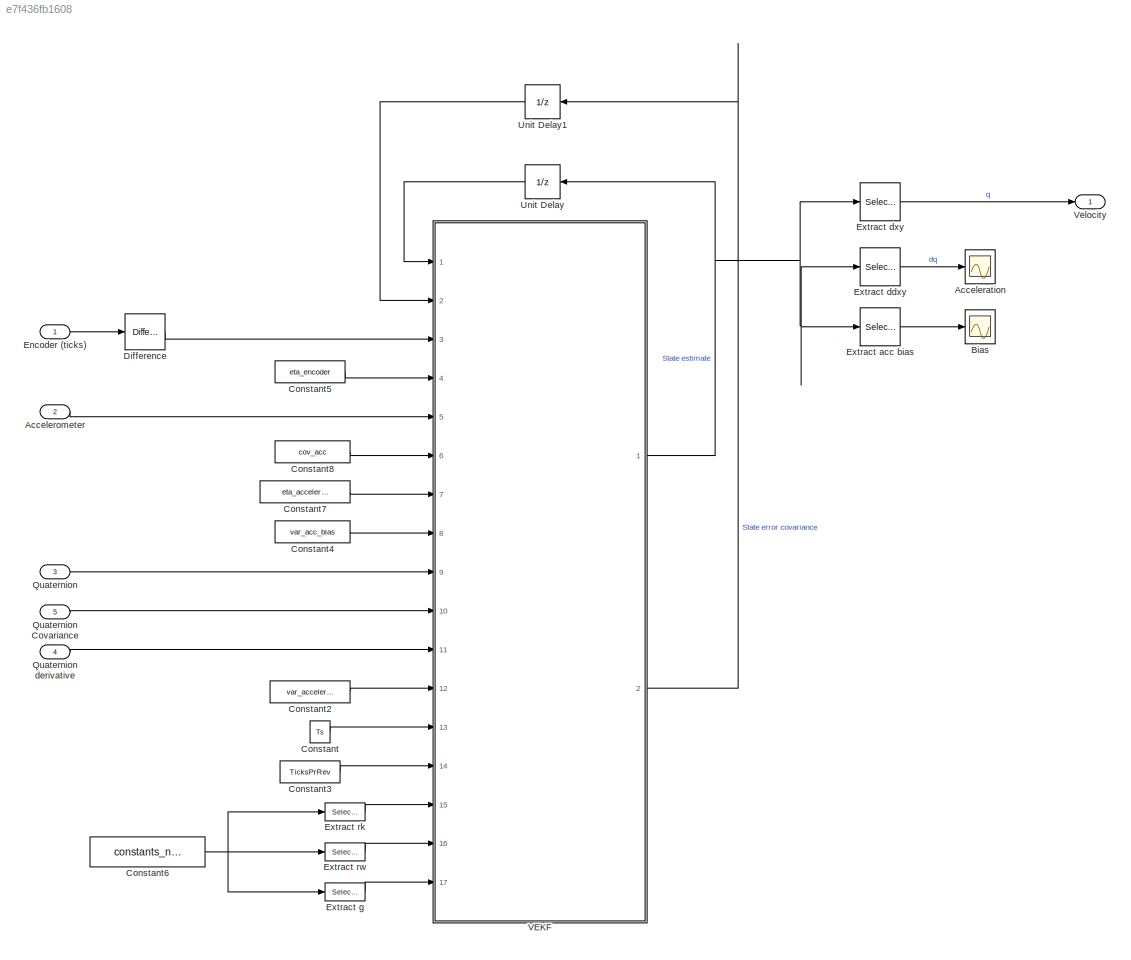
MODEL slx_e7f436fb1608
KIND model
CONFIG AbsTol = auto
CONFIG EnableMultiTasking = off
CONFIG FixedStep = auto
CONFIG InitFcn = Parameters_Estimators\nParameters_Simulation
CONFIG MaxStep = auto
CONFIG MinStep = auto
CONFIG PreLoadFcn = modelDir = fileparts(get_param(bdroot, 'FileName'));\naddpath(fullfile(modelDir,'../../Parameters'));\naddpath(fullfile(modelDir,'../../Estimators/VEKF'));\n\nParameters_Estimators\nParameters_Simulation
CONFIG RelTol = 1e-3
CONFIG SampleTimeConstraint = Unconstrained
CONFIG Solver = VariableStepAuto
CONFIG SolverName = VariableStepAuto
CONFIG StartTime = 0.0
CONFIG StopTime = 10.0
BLOCK [Scope] Acceleration
  Floating = off
  NumInputPorts = 1
  Ports = [1]
  ScopeSpecificationString = Simulink.scopes.TimeScopeBlockCfg('CurrentConfiguration', extmgr.ConfigurationSet(extmgr.Configuration('Core','General UI',true),extmgr.Configuration('Core','Source UI',true),extmgr.Configuration('Sources','WiredSimulink',true,'DataLoggingVariableName','ScopeData1'),extmgr.Configuration('Visuals','Time Domain',true,'SerializedDisplays',{struct('MinYLimReal','-0.00006','MaxYLimReal','0.00017','YLab...<+1507ch>
BLOCK [Inport] Accelerometer
  IconDisplay = Port number
  Port = 2
BLOCK [Scope] Bias
  Floating = off
  NumInputPorts = 1
  Ports = [1]
  ScopeSpecificationString = Simulink.scopes.TimeScopeBlockCfg('CurrentConfiguration', extmgr.ConfigurationSet(extmgr.Configuration('Core','General UI',true),extmgr.Configuration('Core','Source UI',true),extmgr.Configuration('Sources','WiredSimulink',true,'DataLoggingVariableName','ScopeData1'),extmgr.Configuration('Visuals','Time Domain',true,'SerializedDisplays',{struct('MinYLimReal','-0.00006','MaxYLimReal','0.00017','YLab...<+1507ch>
BLOCK [Constant] Constant
  Value = Ts
BLOCK [Constant] Constant2
  Value = var_acceleration
BLOCK [Constant] Constant3
  Value = TicksPrRev
BLOCK [Constant] Constant4
  Value = var_acc_bias
BLOCK [Constant] Constant5
  Value = eta_encoder
BLOCK [Constant] Constant6
  Value = constants_nominal
BLOCK [Constant] Constant7
  Value = eta_accelerometer
BLOCK [Constant] Constant8
  Value = cov_acc
BLOCK [Reference] Difference   REF=simulink/Discrete/Difference
  Ports = [1, 1]
  SourceBlock = simulink/Discrete/Difference
  SourceProductBaseCode = SL
  SourceProductName = Simulink
  SourceType = Difference
BLOCK [Inport] Encoder (ticks)
  IconDisplay = Port number
  PortDimensions = 3
BLOCK [Selector] Extract acc bias
  IndexOptions = Index vector (dialog)
  Indices = [5 6 7]
  InputPortWidth = 7
  OutputSizes = 1
  Ports = [1, 1]
BLOCK [Selector] Extract ddxy
  IndexOptions = Index vector (dialog)
  Indices = [3 4]
  InputPortWidth = 7
  OutputSizes = 1
  Ports = [1, 1]
BLOCK [Selector] Extract dxy
  IndexOptions = Index vector (dialog)
  Indices = [1 2]
  InputPortWidth = 7
  OutputSizes = 1
  Ports = [1, 1]
BLOCK [Selector] Extract g
  IndexOptions = Index vector (dialog)
  Indices = [13]
  InputPortWidth = 13
  OutputSizes = 1
  Ports = [1, 1]
BLOCK [Selector] Extract rk
  IndexOptions = Index vector (dialog)
  Indices = [3]
  InputPortWidth = 13
  OutputSizes = 1
  Ports = [1, 1]
BLOCK [Selector] Extract rw
  IndexOptions = Index vector (dialog)
  Indices = [9]
  InputPortWidth = 13
  OutputSizes = 1
  Ports = [1, 1]
BLOCK [Inport] Quaternion
  IconDisplay = Port number
  Port = 3
BLOCK [Inport] Quaternion Covariance
  IconDisplay = Port number
  Port = 5
BLOCK [Inport] Quaternion derivative
  IconDisplay = Port number
  Port = 4
BLOCK [UnitDelay] Unit Delay
  InitialCondition = zeros(7,1);
  InputProcessing = Elements as channels (sample based)
  SampleTime = Ts
BLOCK [UnitDelay] Unit Delay1
  InitialCondition = diag(VelocityEstimator_P_init_diagonal)
  InputProcessing = Elements as channels (sample based)
  SampleTime = Ts
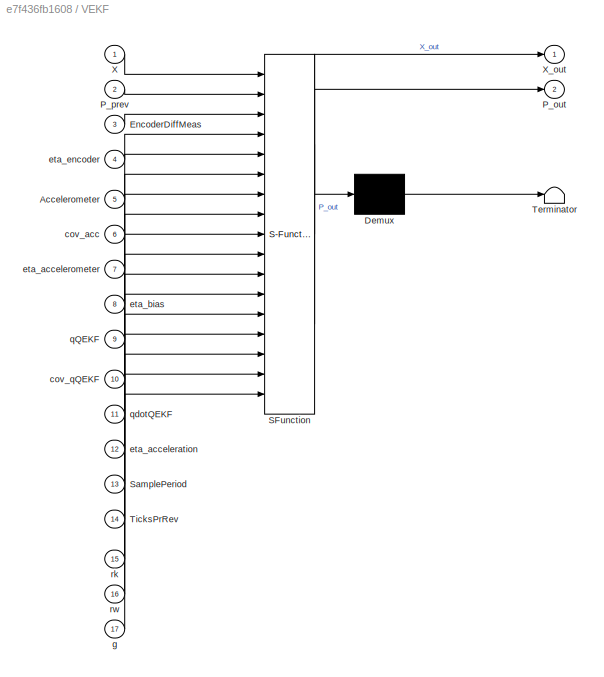
BLOCK [SubSystem] VEKF
  ErrorFcn = Stateflow.Translate.translate
  PermitHierarchicalResolution = ExplicitOnly
  Ports = [17, 2]
  RequestExecContextInheritance = off
  SFBlockType = MATLAB Function
  TreatAsAtomicUnit = on
BLOCK [Demux] VEKF/ Demux 
  Outputs = 1
  Ports = [1, 1]
BLOCK [S-Function] VEKF/ SFunction 
  EnableBusSupport = on
  FunctionName = sf_sfun
  PortCounts = [17 3]
  Ports = [17, 3]
  SFcnIsStateOwnerBlock = off
  SFunctionDeploymentMode = off
  Tag = Stateflow S-Function VEKF 29
BLOCK [Terminator] VEKF/ Terminator 
BLOCK [Inport] VEKF/Accelerometer
  IconDisplay = Port number
  Port = 5
BLOCK [Inport] VEKF/EncoderDiffMeas
  IconDisplay = Port number
  Port = 3
BLOCK [Outport] VEKF/P_out
  IconDisplay = Port number
  Port = 2
BLOCK [Inport] VEKF/P_prev
  IconDisplay = Port number
  Port = 2
BLOCK [Inport] VEKF/SamplePeriod
  IconDisplay = Port number
  Port = 13
BLOCK [Inport] VEKF/TicksPrRev
  IconDisplay = Port number
  Port = 14
BLOCK [Inport] VEKF/X
  IconDisplay = Port number
BLOCK [Outport] VEKF/X_out
  IconDisplay = Port number
BLOCK [Inport] VEKF/cov_acc
  IconDisplay = Port number
  Port = 6
BLOCK [Inport] VEKF/cov_qQEKF
  IconDisplay = Port number
  Port = 10
BLOCK [Inport] VEKF/eta_acceleration
  IconDisplay = Port number
  Port = 12
BLOCK [Inport] VEKF/eta_accelerometer
  IconDisplay = Port number
  Port = 7
BLOCK [Inport] VEKF/eta_bias
  IconDisplay = Port number
  Port = 8
BLOCK [Inport] VEKF/eta_encoder
  IconDisplay = Port number
  Port = 4
BLOCK [Inport] VEKF/g
  IconDisplay = Port number
  Port = 17
BLOCK [Inport] VEKF/qQEKF
  IconDisplay = Port number
  Port = 9
BLOCK [Inport] VEKF/qdotQEKF
  IconDisplay = Port number
  Port = 11
BLOCK [Inport] VEKF/rk
  IconDisplay = Port number
  Port = 15
BLOCK [Inport] VEKF/rw
  IconDisplay = Port number
  Port = 16
BLOCK [Outport] Velocity
  IconDisplay = Port number
LINE Accelerometer:1 -> VEKF:5
LINE Constant2:1 -> VEKF:12
LINE Constant3:1 -> VEKF:14
LINE Constant4:1 -> VEKF:8
LINE Constant5:1 -> VEKF:4
NET Constant6:1 -> Extract g:1, Extract rk:1, Extract rw:1
LINE Constant7:1 -> VEKF:7
LINE Constant8:1 -> VEKF:6
LINE Constant:1 -> VEKF:13
LINE Difference :1 -> VEKF:3
LINE Encoder (ticks):1 -> Difference :1
LINE Extract acc bias:1 -> Bias:1
LINE Extract ddxy:1 -> Acceleration:1
LINE Extract dxy:1 -> Velocity:1
LINE Extract g:1 -> VEKF:17
LINE Extract rk:1 -> VEKF:15
LINE Extract rw:1 -> VEKF:16
LINE Quaternion Covariance:1 -> VEKF:10
LINE Quaternion derivative:1 -> VEKF:11
LINE Quaternion:1 -> VEKF:9
LINE Unit Delay1:1 -> VEKF:2
LINE Unit Delay:1 -> VEKF:1
NET VEKF:1 -> Extract acc bias:1, Extract ddxy:1, Extract dxy:1, Unit Delay:1
LINE VEKF:2 -> Unit Delay1:1
note: NET lines group one-source signal fan-out (src -> all destinations, sorted); 1:1 wires keep LINE
CHART VEKF states=1 transitions=1
  STATE_LABEL 'eML_blk_kernel()'
  STATE_LABEL 'SCRIPT:\nfunction [X_out, P_out] = VelocityEKF_(X, P_prev, EncoderDiffMeas, eta_encoder, Accelerometer, cov_acc, eta_accelerometer, eta_bias, qQEKF, cov_qQEKF, qdotQEKF, eta_acceleration, SamplePeriod, TicksPrRev, rk,rw,g)\n    [X_out_, P_out_] = VelocityEKF(single(X), single(P_prev), single(EncoderDiffMeas), single(eta_encoder), single(Accelerometer), single(cov_acc), single(eta_accelerometer), sin...<+230ch>'
